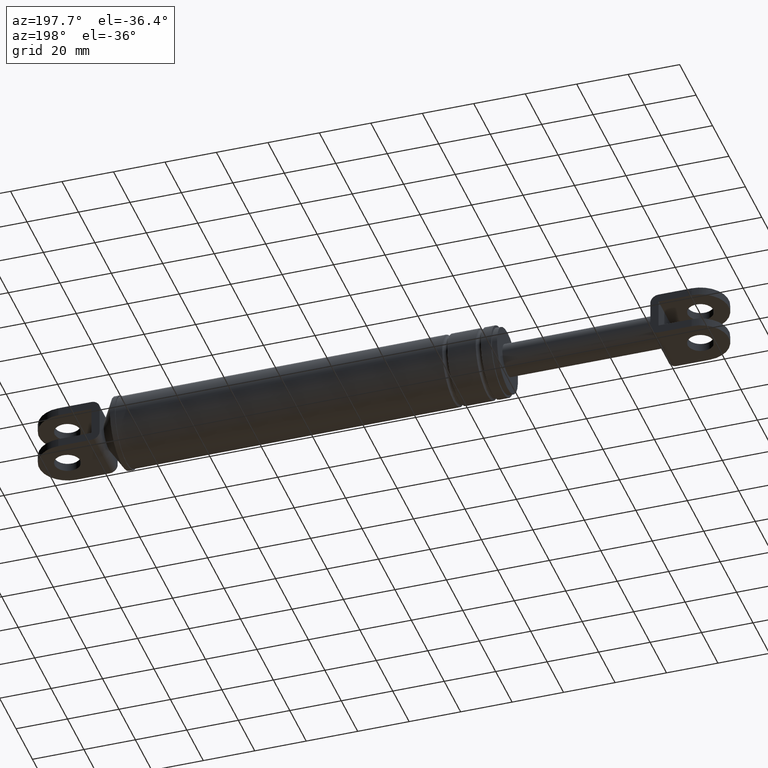
[diagram: clean part render]
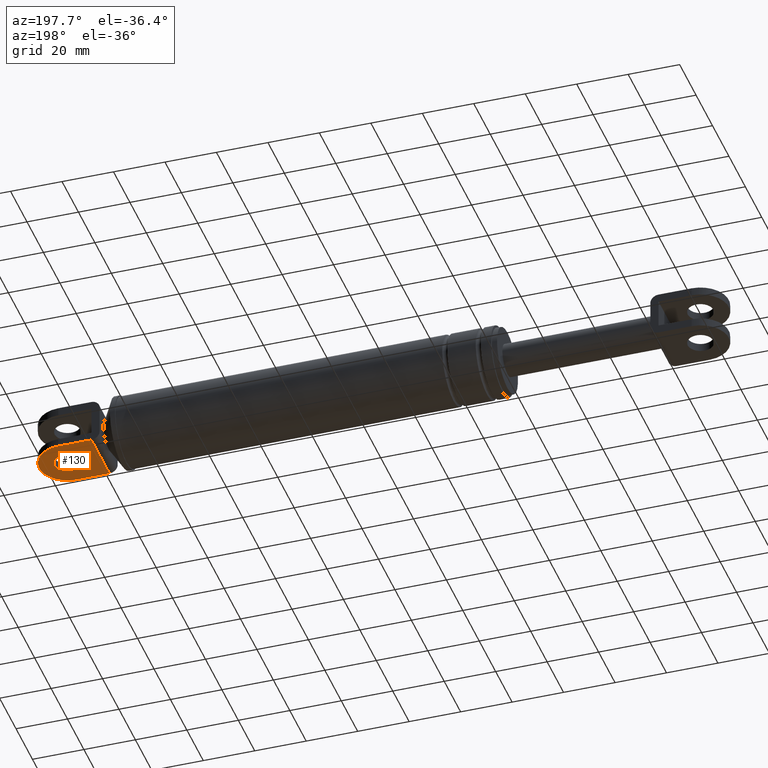
[diagram: same view with one face highlighted and labeled with its STEP entity id]
A machine part, auxiliary view. The second image highlights one B-rep face of the part: STEP entity #130.
In plain terms, the highlighted planar face has unit normal (0, 0, -1).
Its self-contained STEP definition (entity closure, byte-faithful):
#130=ADVANCED_FACE('',(#361,#362),#360,.T.);
#360=PLANE('',#1331);
#361=FACE_OUTER_BOUND('',#1332,.T.);
#362=FACE_BOUND('',#1333,.T.);
#1328=CARTESIAN_POINT('',(3.20106725884E+002,-1.32000011519E+001,1.11120545859E+002));
#1329=DIRECTION('',(0.00000000000E+000,0.00000000000E+000,-1.00000000000E+000));
#1330=DIRECTION('',(0.00000000000E+000,1.00000000000E+000,0.00000000000E+000));
#1331=AXIS2_PLACEMENT_3D('',#1328,#1329,#1330);
#1332=EDGE_LOOP('',(#2059,#2060,#2061,#2062,#2063,#2064));
#1333=EDGE_LOOP('',(#2065,#2066));
#2059=ORIENTED_EDGE('',*,*,#2299,.T.);
#2060=ORIENTED_EDGE('',*,*,#2288,.T.);
#2061=ORIENTED_EDGE('',*,*,#2285,.T.);
#2062=ORIENTED_EDGE('',*,*,#2323,.T.);
#2063=ORIENTED_EDGE('',*,*,#2305,.F.);
#2064=ORIENTED_EDGE('',*,*,#2335,.F.);
#2065=ORIENTED_EDGE('',*,*,#2341,.T.);
#2066=ORIENTED_EDGE('',*,*,#2342,.T.);
#2285=EDGE_CURVE('',#2437,#2459,#2466,.T.);
#2288=EDGE_CURVE('',#2473,#2437,#2486,.T.);
#2299=EDGE_CURVE('',#2561,#2473,#2562,.T.);
#2305=EDGE_CURVE('',#2601,#2602,#2603,.T.);
#2323=EDGE_CURVE('',#2459,#2602,#2726,.T.);
#2335=EDGE_CURVE('',#2561,#2601,#2803,.T.);
#2341=EDGE_CURVE('',#2841,#2842,#2843,.T.);
#2342=EDGE_CURVE('',#2842,#2841,#2849,.T.);
#2437=VERTEX_POINT('',#3471);
#2459=VERTEX_POINT('',#3487);
#2466=(BOUNDED_CURVE() B_SPLINE_CURVE(3,(#3492,#3493,#3494,#3495,#3496,#3497,#3498,#3499,#3500,#3501),.UNSPECIFIED.,.F.,.F.) B_SPLINE_CURVE_WITH_KNOTS((4,2,2,2,4),(0.00000000000E+000,1.21218446840E-003,2.42436893681E-003,3.63655340521E-003,4.84873787361E-003),.UNSPECIFIED.) CURVE() GEOMETRIC_REPRESENTATION_ITEM() RATIONAL_B_SPLINE_CURVE((1.00000000000E+000,1.00000000000E+000,1.00000000000E+000,1.00000000000E+000,1.00000000000E+000,1.00000000000E+000,1.00000000000E+000,1.00000000000E+000,1.00000000000E+000,1.00000000000E+000)) REPRESENTATION_ITEM('') );
#2473=VERTEX_POINT('',#3503);
#2486=LINE('',#3511,#3512);
#2561=VERTEX_POINT('',#3556);
#2562=LINE('',#3557,#3558);
#2601=VERTEX_POINT('',#3579);
#2602=VERTEX_POINT('',#3580);
#2603=LINE('',#3581,#3582);
#2726=LINE('',#3662,#3663);
#2803=CIRCLE('',#3718,1.10000000000E+001);
#2841=VERTEX_POINT('',#3741);
#2842=VERTEX_POINT('',#3742);
#2843=CIRCLE('',#3746,5.00000000000E+000);
#2849=CIRCLE('',#3750,5.00000000000E+000);
#3471=CARTESIAN_POINT('',(3.22531797029E+002,-2.42391066068E+000,1.11120545859E+002));
#3487=CARTESIAN_POINT('',(3.22531797029E+002,2.42391066068E+000,1.11120545859E+002));
#3492=CARTESIAN_POINT('',(3.22531797029E+002,-2.42391066068E+000,1.11120545859E+002));
#3493=CARTESIAN_POINT('',(3.22531797029E+002,-2.01978594962E+000,1.11120545859E+002));
#3494=CARTESIAN_POINT('',(3.22519688236E+002,-1.61587544957E+000,1.11120545859E+002));
#3495=CARTESIAN_POINT('',(3.22498980300E+002,-8.07992361936E-001,1.11120545859E+002));
#3496=CARTESIAN_POINT('',(3.22490823261E+002,-4.03971207306E-001,1.11120545859E+002));
#3497=CARTESIAN_POINT('',(3.22490825770E+002,4.04182603972E-001,1.11120545859E+002));
#3498=CARTESIAN_POINT('',(3.22498983566E+002,8.08128799520E-001,1.11120545859E+002));
#3499=CARTESIAN_POINT('',(3.22519690399E+002,1.61595082018E+000,1.11120545859E+002));
#3500=CARTESIAN_POINT('',(3.22531797029E+002,2.01983373493E+000,1.11120545859E+002));
#3501=CARTESIAN_POINT('',(3.22531797029E+002,2.42391066068E+000,1.11120545859E+002));
#3503=CARTESIAN_POINT('',(3.22531797029E+002,-1.10000000000E+001,1.11120545859E+002));
#3511=CARTESIAN_POINT('',(3.22531797029E+002,-1.10000000000E+001,1.11120545859E+002));
#3512=VECTOR('',#3513,8.57608933932E+000);
#3513=DIRECTION('',(0.00000000000E+000,1.00000000000E+000,0.00000000000E+000));
#3556=CARTESIAN_POINT('',(3.35331796069E+002,-1.10000000000E+001,1.11120545859E+002));
#3557=CARTESIAN_POINT('',(3.35331796069E+002,-1.10000000000E+001,1.11120545859E+002));
#3558=VECTOR('',#3559,1.27999990401E+001);
#3559=DIRECTION('',(-1.00000000000E+000,0.00000000000E+000,0.00000000000E+000));
#3579=CARTESIAN_POINT('',(3.35331796069E+002,1.10000000000E+001,1.11120545859E+002));
#3580=CARTESIAN_POINT('',(3.22531797029E+002,1.10000000000E+001,1.11120545859E+002));
#3581=CARTESIAN_POINT('',(3.35331796069E+002,1.10000000000E+001,1.11120545859E+002));
#3582=VECTOR('',#3583,1.27999990401E+001);
#3583=DIRECTION('',(-1.00000000000E+000,0.00000000000E+000,0.00000000000E+000));
#3662=CARTESIAN_POINT('',(3.22531797029E+002,2.42391066068E+000,1.11120545859E+002));
#3663=VECTOR('',#3664,8.57608933932E+000);
#3664=DIRECTION('',(0.00000000000E+000,1.00000000000E+000,0.00000000000E+000));
#3715=CARTESIAN_POINT('',(3.35331797029E+002,0.00000000000E+000,1.11120545859E+002));
#3716=DIRECTION('',(-9.13508299739E-016,7.97186270143E-023,1.00000000000E+000));
#3717=DIRECTION('',(-8.72664508346E-008,-1.00000000000E+000,-1.11868806813E-031));
#3718=AXIS2_PLACEMENT_3D('',#3715,#3716,#3717);
#3741=CARTESIAN_POINT('',(3.40331797029E+002,-6.12323399574E-016,1.11120545859E+002));
#3742=CARTESIAN_POINT('',(3.30331797029E+002,-5.92118946467E-016,1.11120545859E+002));
#3743=CARTESIAN_POINT('',(3.35331797029E+002,-3.06161699787E-016,1.11120545859E+002));
#3744=DIRECTION('',(1.23051628678E-031,-2.00971834712E-015,1.00000000000E+000));
#3745=DIRECTION('',(1.00000000000E+000,6.12282954249E-017,-0.00000000000E+000));
#3746=AXIS2_PLACEMENT_3D('',#3743,#3744,#3745);
#3747=CARTESIAN_POINT('',(3.35331797029E+002,-3.06161699787E-016,1.11120545859E+002));
#3748=DIRECTION('',(1.23051628678E-031,-2.00971834712E-015,1.00000000000E+000));
#3749=DIRECTION('',(1.00000000000E+000,6.12282954249E-017,-0.00000000000E+000));
#3750=AXIS2_PLACEMENT_3D('',#3747,#3748,#3749);